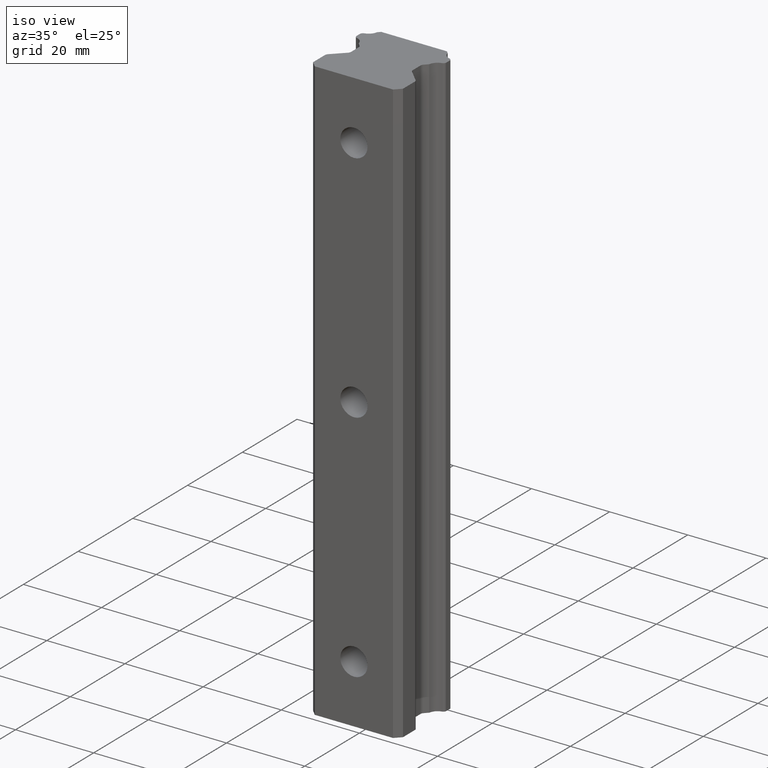
[diagram: clean part render]
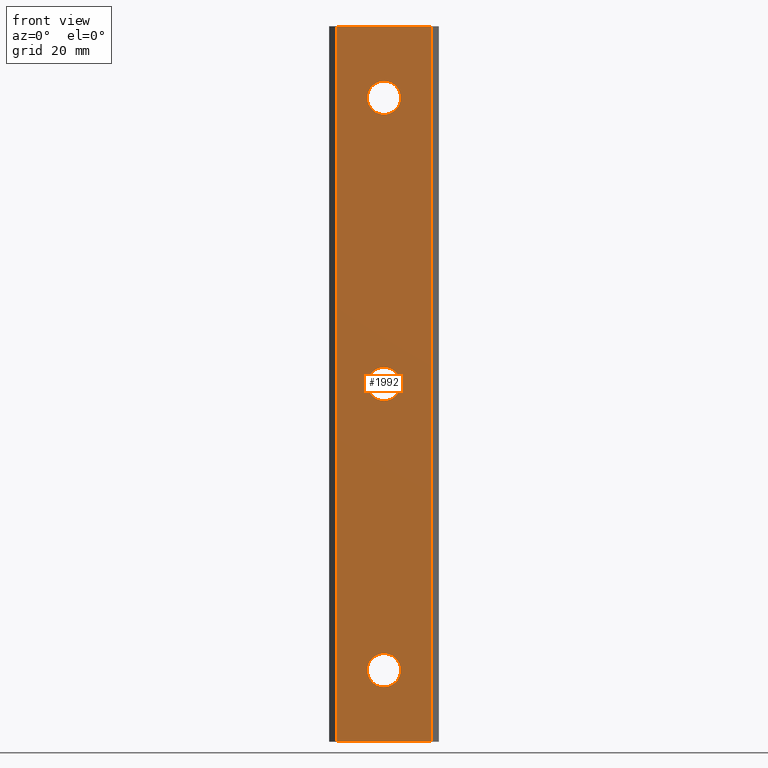
[diagram: tour spotlight — one face highlighted and labeled with its STEP entity id]
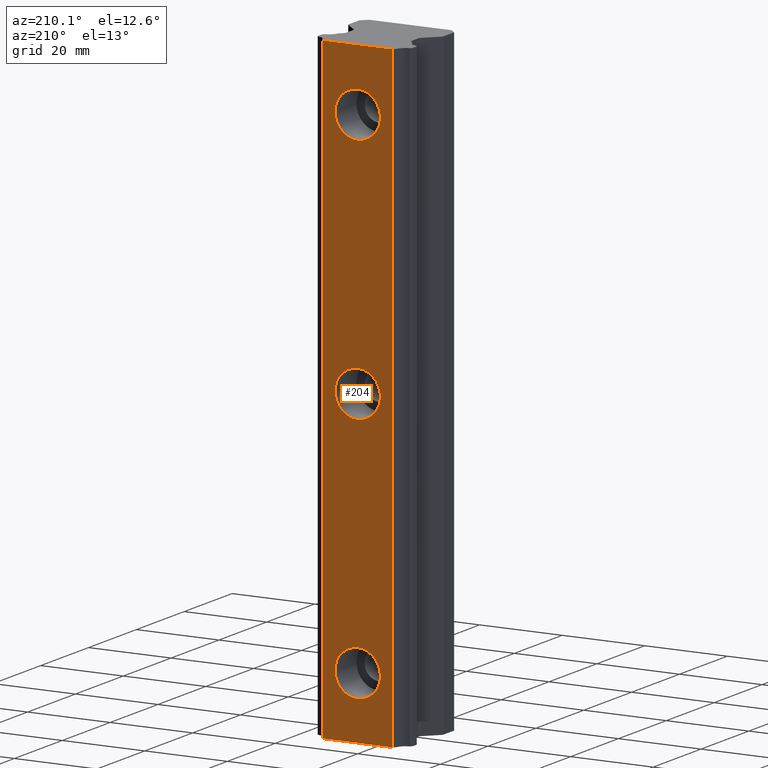
[diagram: tour spotlight — one face highlighted and labeled with its STEP entity id]
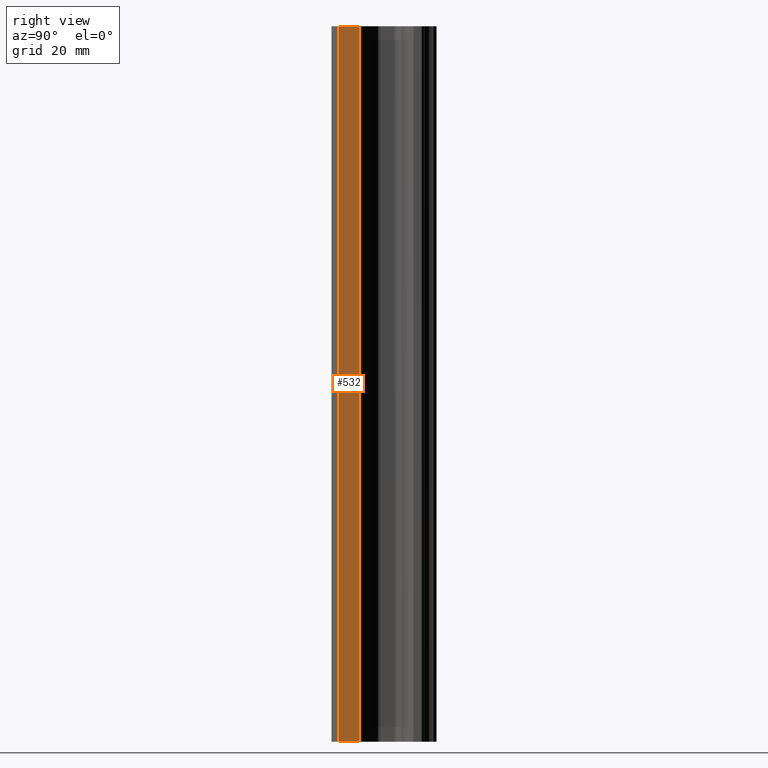
[diagram: tour spotlight — one face highlighted and labeled with its STEP entity id]
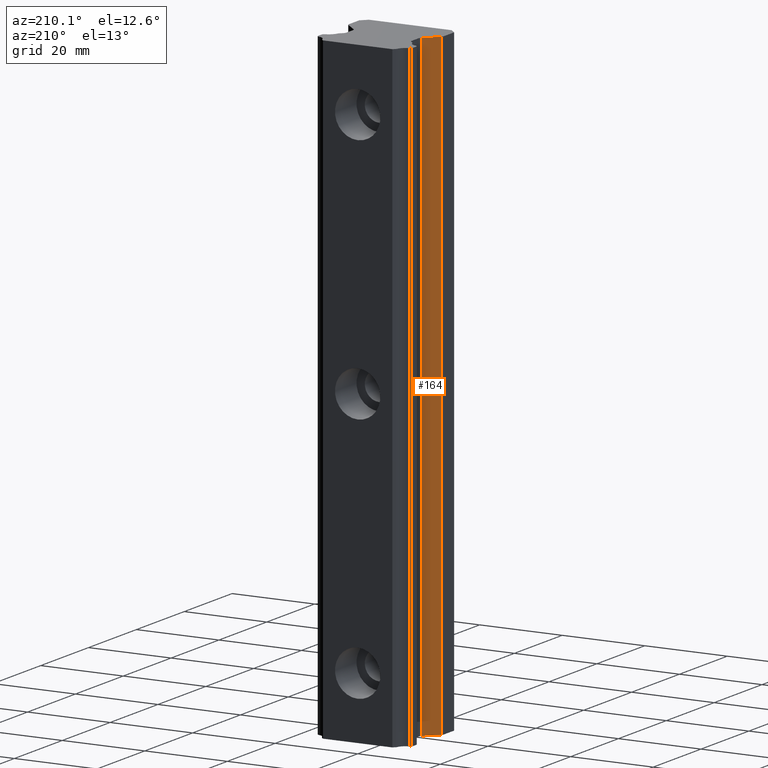
[diagram: tour spotlight — one face highlighted and labeled with its STEP entity id]
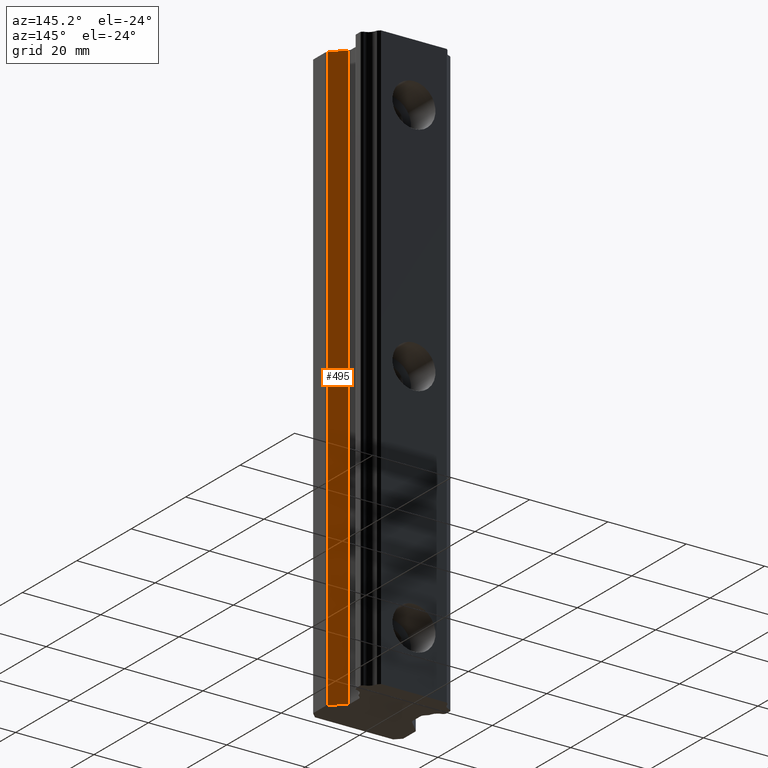
[diagram: tour spotlight — one face highlighted and labeled with its STEP entity id]
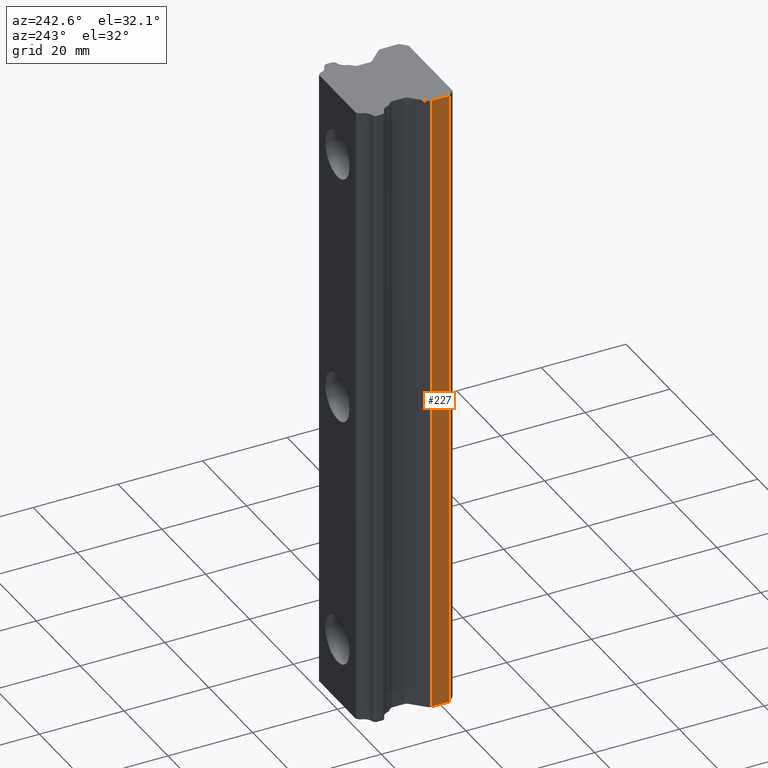
[diagram: tour spotlight — one face highlighted and labeled with its STEP entity id]
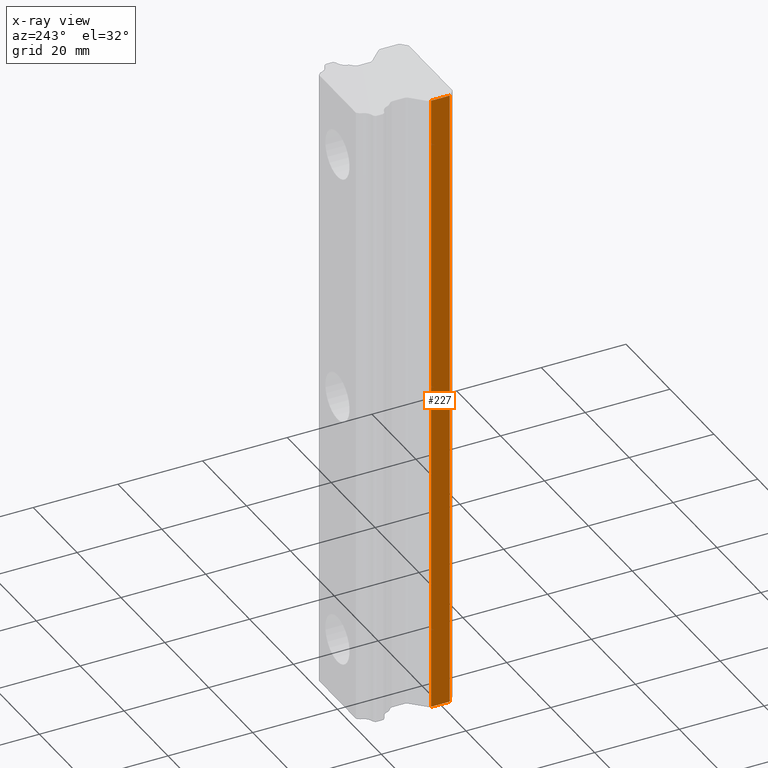
[diagram: x-ray of the same camera — body ghosted, this tour face saturated]
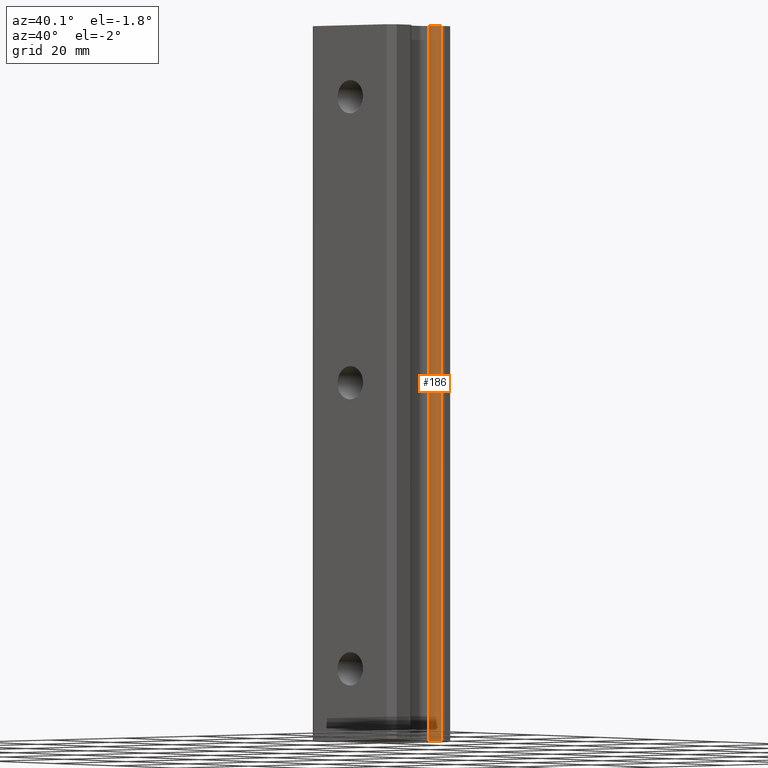
[diagram: tour spotlight — one face highlighted and labeled with its STEP entity id]
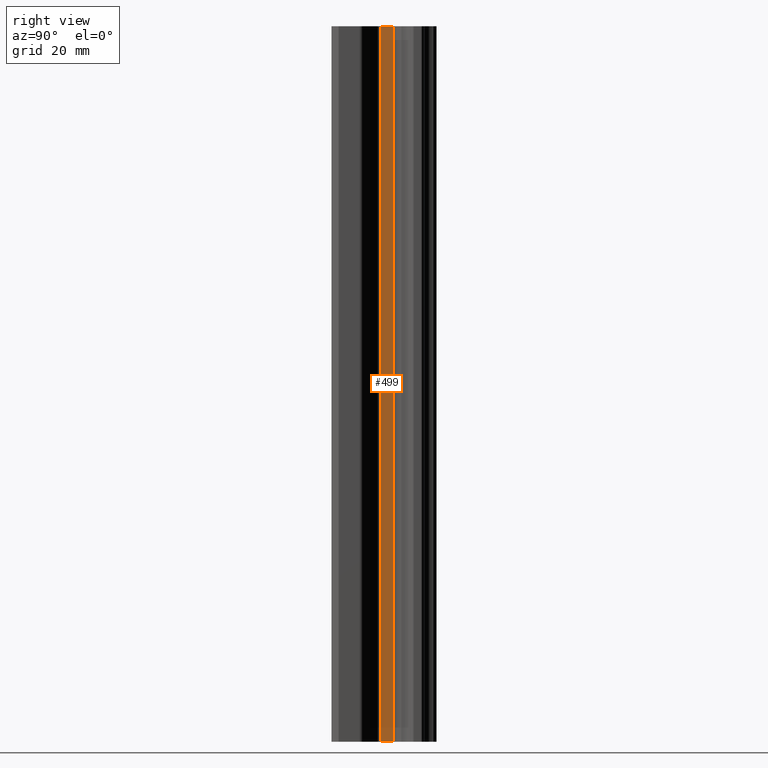
[diagram: tour spotlight — one face highlighted and labeled with its STEP entity id]
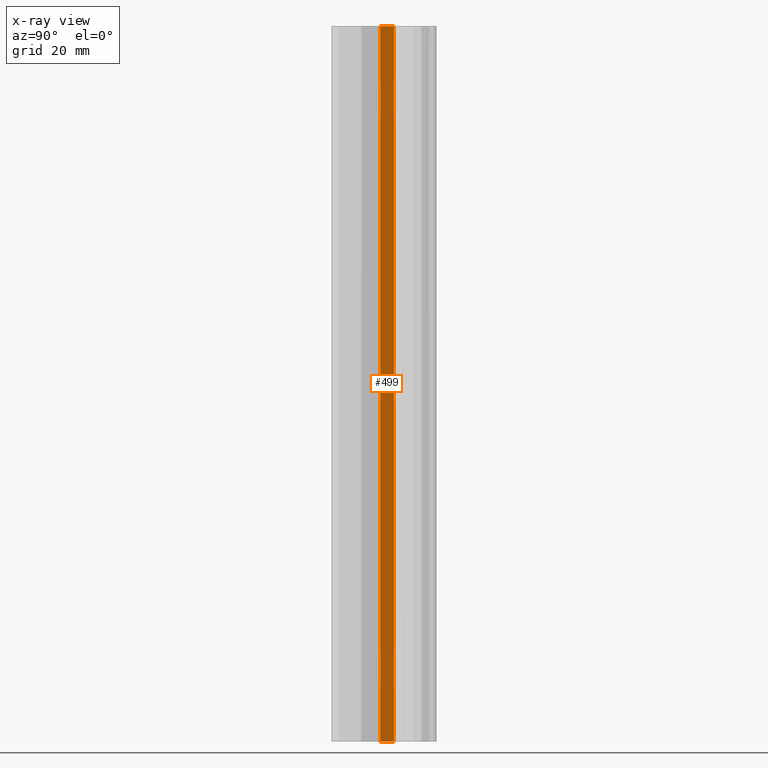
[diagram: x-ray of the same camera — body ghosted, this tour face saturated]
A machine part: a face-by-face anatomy tour. The part has 59 B-rep faces; the first image is the clean iso view, then the 8 largest visible faces are spotlighted one at a time (largest first), each with its STEP entity span.

Face 1 — front view, entity #1992. In plain terms, the highlighted planar face has unit normal (0, -1, 0).
Definition (entity closure, byte-faithful):
#5 = VERTEX_POINT ( 'NONE', #559 ) ;
#42 = VERTEX_POINT ( 'NONE', #615 ) ;
#55 = EDGE_CURVE ( 'NONE', #5, #42, #614, .T. ) ;
#96 = VERTEX_POINT ( 'NONE', #642 ) ;
#113 = EDGE_CURVE ( 'NONE', #96, #119, #691, .T. ) ;
#119 = VERTEX_POINT ( 'NONE', #681 ) ;
#131 = EDGE_CURVE ( 'NONE', #42, #96, #666, .T. ) ;
#179 = VERTEX_POINT ( 'NONE', #779 ) ;
#180 = VERTEX_POINT ( 'NONE', #778 ) ;
#183 = EDGE_CURVE ( 'NONE', #180, #179, #773, .T. ) ;
#207 = VERTEX_POINT ( 'NONE', #846 ) ;
#211 = VERTEX_POINT ( 'NONE', #844 ) ;
#218 = EDGE_CURVE ( 'NONE', #211, #207, #839, .T. ) ;
#236 = VERTEX_POINT ( 'NONE', #867 ) ;
#237 = VERTEX_POINT ( 'NONE', #866 ) ;
#238 = EDGE_CURVE ( 'NONE', #236, #237, #865, .T. ) ;
#559 = CARTESIAN_POINT ( 'NONE',  ( 10.00000000000000000, -22.00000000000000000, -75.00000000000000000 ) ) ;
#611 = DIRECTION ( 'NONE',  ( 0.0000000000000000000, 0.0000000000000000000, 1.000000000000000000 ) ) ;
#612 = VECTOR ( 'NONE', #611, 1000.000000000000000 ) ;
#613 = CARTESIAN_POINT ( 'NONE',  ( 10.00000000000000000, -22.00000000000000000, -75.00000000000000000 ) ) ;
#614 = LINE ( 'NONE', #613, #612 ) ;
#615 = CARTESIAN_POINT ( 'NONE',  ( 9.999999999999998200, -22.00000000000000000, 75.00000000000001400 ) ) ;
#642 = CARTESIAN_POINT ( 'NONE',  ( -10.00000000000000000, -22.00000000000000000, 75.00000000000005700 ) ) ;
#663 = DIRECTION ( 'NONE',  ( -1.000000000000000000, 0.0000000000000000000, 0.0000000000000000000 ) ) ;
#664 = VECTOR ( 'NONE', #663, 1000.000000000000000 ) ;
#665 = CARTESIAN_POINT ( 'NONE',  ( -10.00000000000000000, -22.00000000000000000, 75.00000000000000000 ) ) ;
#666 = LINE ( 'NONE', #665, #664 ) ;
#681 = CARTESIAN_POINT ( 'NONE',  ( -10.00000000000000000, -22.00000000000000000, -75.00000000000000000 ) ) ;
#688 = DIRECTION ( 'NONE',  ( 0.0000000000000000000, 0.0000000000000000000, -1.000000000000000000 ) ) ;
#689 = VECTOR ( 'NONE', #688, 1000.000000000000000 ) ;
#690 = CARTESIAN_POINT ( 'NONE',  ( -10.00000000000000000, -22.00000000000000000, -75.00000000000000000 ) ) ;
#691 = LINE ( 'NONE', #690, #689 ) ;
#769 = DIRECTION ( 'NONE',  ( 0.0000000000000000000, 0.0000000000000000000, 1.000000000000000000 ) ) ;
#770 = DIRECTION ( 'NONE',  ( 0.0000000000000000000, 1.000000000000000000, 0.0000000000000000000 ) ) ;
#771 = CARTESIAN_POINT ( 'NONE',  ( 0.0000000000000000000, -22.00000000000000000, 0.0000000000000000000 ) ) ;
#772 = AXIS2_PLACEMENT_3D ( 'NONE', #771, #770, #769 ) ;
#773 = CIRCLE ( 'NONE', #772, 3.500000000000000000 ) ;
#778 = CARTESIAN_POINT ( 'NONE',  ( 4.286263797015736600E-016, -22.00000000000000000, -3.500000000000000000 ) ) ;
#779 = CARTESIAN_POINT ( 'NONE',  ( 0.0000000000000000000, -22.00000000000000000, 3.500000000000000000 ) ) ;
#835 = DIRECTION ( 'NONE',  ( 0.0000000000000000000, 0.0000000000000000000, 1.000000000000000000 ) ) ;
#836 = DIRECTION ( 'NONE',  ( 0.0000000000000000000, 1.000000000000000000, 0.0000000000000000000 ) ) ;
#837 = CARTESIAN_POINT ( 'NONE',  ( 0.0000000000000000000, -22.00000000000000000, -60.00000000000000000 ) ) ;
#838 = AXIS2_PLACEMENT_3D ( 'NONE', #837, #836, #835 ) ;
#839 = CIRCLE ( 'NONE', #838, 3.500000000000003100 ) ;
#844 = CARTESIAN_POINT ( 'NONE',  ( 4.286263797015732700E-016, -22.00000000000000000, -63.50000000000000000 ) ) ;
#846 = CARTESIAN_POINT ( 'NONE',  ( 0.0000000000000000000, -22.00000000000000000, -56.49999999999999300 ) ) ;
#861 = DIRECTION ( 'NONE',  ( 0.0000000000000000000, 0.0000000000000000000, 1.000000000000000000 ) ) ;
#862 = DIRECTION ( 'NONE',  ( 0.0000000000000000000, 1.000000000000000000, 0.0000000000000000000 ) ) ;
#863 = CARTESIAN_POINT ( 'NONE',  ( 0.0000000000000000000, -22.00000000000000000, 60.00000000000000000 ) ) ;
#864 = AXIS2_PLACEMENT_3D ( 'NONE', #863, #862, #861 ) ;
#865 = CIRCLE ( 'NONE', #864, 3.500000000000003100 ) ;
#866 = CARTESIAN_POINT ( 'NONE',  ( 0.0000000000000000000, -22.00000000000000000, 63.50000000000000000 ) ) ;
#867 = CARTESIAN_POINT ( 'NONE',  ( 4.286263797015732700E-016, -22.00000000000000000, 56.49999999999999300 ) ) ;
#1382 = ORIENTED_EDGE ( 'NONE', *, *, #1944, .T. ) ;
#1769 = CIRCLE ( 'NONE', #1829, 3.500000000000000000 ) ;
#1772 = DIRECTION ( 'NONE',  ( 1.000000000000000000, 0.0000000000000000000, 0.0000000000000000000 ) ) ;
#1773 = VECTOR ( 'NONE', #1772, 1000.000000000000000 ) ;
#1774 = CARTESIAN_POINT ( 'NONE',  ( -10.00000000000000000, -22.00000000000000000, -75.00000000000000000 ) ) ;
#1775 = LINE ( 'NONE', #1774, #1773 ) ;
#1799 = PLANE ( 'NONE',  #1846 ) ;
#1800 = FACE_OUTER_BOUND ( 'NONE', #1978, .T. ) ;
#1801 = FACE_BOUND ( 'NONE', #1985, .T. ) ;
#1802 = FACE_BOUND ( 'NONE', #1988, .T. ) ;
#1803 = FACE_BOUND ( 'NONE', #1991, .T. ) ;
#1804 = DIRECTION ( 'NONE',  ( 0.0000000000000000000, 0.0000000000000000000, 1.000000000000000000 ) ) ;
#1805 = DIRECTION ( 'NONE',  ( 0.0000000000000000000, 1.000000000000000000, 0.0000000000000000000 ) ) ;
#1806 = CARTESIAN_POINT ( 'NONE',  ( 0.0000000000000000000, -22.00000000000000000, -60.00000000000000000 ) ) ;
#1807 = AXIS2_PLACEMENT_3D ( 'NONE', #1806, #1805, #1804 ) ;
#1808 = CIRCLE ( 'NONE', #1807, 3.500000000000003100 ) ;
#1809 = DIRECTION ( 'NONE',  ( 0.0000000000000000000, 0.0000000000000000000, 1.000000000000000000 ) ) ;
#1810 = DIRECTION ( 'NONE',  ( 0.0000000000000000000, 1.000000000000000000, 0.0000000000000000000 ) ) ;
#1811 = AXIS2_PLACEMENT_3D ( 'NONE', #1817, #1810, #1809 ) ;
#1812 = CIRCLE ( 'NONE', #1811, 3.500000000000003100 ) ;
#1817 = CARTESIAN_POINT ( 'NONE',  ( 0.0000000000000000000, -22.00000000000000000, 60.00000000000000000 ) ) ;
#1826 = DIRECTION ( 'NONE',  ( 0.0000000000000000000, 0.0000000000000000000, 1.000000000000000000 ) ) ;
#1827 = DIRECTION ( 'NONE',  ( 0.0000000000000000000, 1.000000000000000000, 0.0000000000000000000 ) ) ;
#1828 = CARTESIAN_POINT ( 'NONE',  ( 0.0000000000000000000, -22.00000000000000000, 0.0000000000000000000 ) ) ;
#1829 = AXIS2_PLACEMENT_3D ( 'NONE', #1828, #1827, #1826 ) ;
#1843 = DIRECTION ( 'NONE',  ( 0.0000000000000000000, 0.0000000000000000000, -1.000000000000000000 ) ) ;
#1844 = DIRECTION ( 'NONE',  ( 0.0000000000000000000, -1.000000000000000000, 0.0000000000000000000 ) ) ;
#1845 = CARTESIAN_POINT ( 'NONE',  ( -10.00000000000000000, -22.00000000000000000, -75.00000000000000000 ) ) ;
#1846 = AXIS2_PLACEMENT_3D ( 'NONE', #1845, #1844, #1843 ) ;
#1944 = EDGE_CURVE ( 'NONE', #119, #5, #1775, .T. ) ;
#1962 = EDGE_CURVE ( 'NONE', #179, #180, #1769, .T. ) ;
#1975 = EDGE_CURVE ( 'NONE', #237, #236, #1812, .T. ) ;
#1978 = EDGE_LOOP ( 'NONE', ( #1980, #1382, #1996, #1994 ) ) ;
#1980 = ORIENTED_EDGE ( 'NONE', *, *, #113, .T. ) ;
#1982 = EDGE_CURVE ( 'NONE', #207, #211, #1808, .T. ) ;
#1983 = ORIENTED_EDGE ( 'NONE', *, *, #183, .T. ) ;
#1984 = ORIENTED_EDGE ( 'NONE', *, *, #1962, .T. ) ;
#1985 = EDGE_LOOP ( 'NONE', ( #1984, #1983 ) ) ;
#1986 = ORIENTED_EDGE ( 'NONE', *, *, #218, .T. ) ;
#1987 = ORIENTED_EDGE ( 'NONE', *, *, #1982, .T. ) ;
#1988 = EDGE_LOOP ( 'NONE', ( #1987, #1986 ) ) ;
#1989 = ORIENTED_EDGE ( 'NONE', *, *, #238, .T. ) ;
#1990 = ORIENTED_EDGE ( 'NONE', *, *, #1975, .T. ) ;
#1991 = EDGE_LOOP ( 'NONE', ( #1990, #1989 ) ) ;
#1992 = ADVANCED_FACE ( 'NONE', ( #1803, #1802, #1801, #1800 ), #1799, .T. ) ;
#1994 = ORIENTED_EDGE ( 'NONE', *, *, #131, .T. ) ;
#1996 = ORIENTED_EDGE ( 'NONE', *, *, #55, .T. ) ;

Face 2 — auxiliary view, entity #204. In plain terms, the highlighted planar face has unit normal (0, 1, 0).
Definition (entity closure, byte-faithful):
#11 = EDGE_LOOP ( 'NONE', ( #65, #61 ) ) ;
#33 = ORIENTED_EDGE ( 'NONE', *, *, #380, .T. ) ;
#45 = ORIENTED_EDGE ( 'NONE', *, *, #431, .T. ) ;
#60 = ORIENTED_EDGE ( 'NONE', *, *, #62, .F. ) ;
#61 = ORIENTED_EDGE ( 'NONE', *, *, #154, .T. ) ;
#62 = EDGE_CURVE ( 'NONE', #381, #432, #606, .T. ) ;
#63 = EDGE_CURVE ( 'NONE', #403, #329, #602, .T. ) ;
#64 = ORIENTED_EDGE ( 'NONE', *, *, #63, .T. ) ;
#65 = ORIENTED_EDGE ( 'NONE', *, *, #1324, .T. ) ;
#66 = EDGE_LOOP ( 'NONE', ( #33, #64, #45, #60 ) ) ;
#154 = EDGE_CURVE ( 'NONE', #1415, #1317, #754, .T. ) ;
#201 = EDGE_LOOP ( 'NONE', ( #214, #1372 ) ) ;
#203 = ORIENTED_EDGE ( 'NONE', *, *, #497, .T. ) ;
#204 = ADVANCED_FACE ( 'NONE', ( #795, #794, #793, #792 ), #791, .T. ) ;
#212 = ORIENTED_EDGE ( 'NONE', *, *, #1341, .T. ) ;
#214 = ORIENTED_EDGE ( 'NONE', *, *, #1354, .T. ) ;
#215 = EDGE_LOOP ( 'NONE', ( #212, #203 ) ) ;
#329 = VERTEX_POINT ( 'NONE', #1077 ) ;
#380 = EDGE_CURVE ( 'NONE', #381, #403, #1172, .T. ) ;
#381 = VERTEX_POINT ( 'NONE', #1168 ) ;
#403 = VERTEX_POINT ( 'NONE', #1194 ) ;
#431 = EDGE_CURVE ( 'NONE', #329, #432, #1208, .T. ) ;
#432 = VERTEX_POINT ( 'NONE', #1266 ) ;
#494 = EDGE_CURVE ( 'NONE', #1306, #1347, #1461, .T. ) ;
#497 = EDGE_CURVE ( 'NONE', #1352, #1339, #1450, .T. ) ;
#599 = DIRECTION ( 'NONE',  ( -1.000000000000000000, 0.0000000000000000000, 0.0000000000000000000 ) ) ;
#600 = VECTOR ( 'NONE', #599, 1000.000000000000000 ) ;
#601 = CARTESIAN_POINT ( 'NONE',  ( 0.0000000000000000000, 0.0000000000000000000, -75.00000000000000000 ) ) ;
#602 = LINE ( 'NONE', #601, #600 ) ;
#603 = DIRECTION ( 'NONE',  ( -1.000000000000000000, 0.0000000000000000000, 0.0000000000000000000 ) ) ;
#604 = VECTOR ( 'NONE', #603, 1000.000000000000000 ) ;
#605 = CARTESIAN_POINT ( 'NONE',  ( 0.0000000000000000000, 0.0000000000000000000, 75.00000000000000000 ) ) ;
#606 = LINE ( 'NONE', #605, #604 ) ;
#750 = DIRECTION ( 'NONE',  ( 0.0000000000000000000, 0.0000000000000000000, 1.000000000000000000 ) ) ;
#751 = DIRECTION ( 'NONE',  ( 0.0000000000000000000, -1.000000000000000000, 0.0000000000000000000 ) ) ;
#752 = CARTESIAN_POINT ( 'NONE',  ( 0.0000000000000000000, 0.0000000000000000000, 60.00000000000000000 ) ) ;
#753 = AXIS2_PLACEMENT_3D ( 'NONE', #752, #751, #750 ) ;
#754 = CIRCLE ( 'NONE', #753, 5.500000000000005300 ) ;
#791 = PLANE ( 'NONE',  #854 ) ;
#792 = FACE_OUTER_BOUND ( 'NONE', #66, .T. ) ;
#793 = FACE_BOUND ( 'NONE', #11, .T. ) ;
#794 = FACE_BOUND ( 'NONE', #201, .T. ) ;
#795 = FACE_BOUND ( 'NONE', #215, .T. ) ;
#851 = DIRECTION ( 'NONE',  ( 0.0000000000000000000, 0.0000000000000000000, 1.000000000000000000 ) ) ;
#852 = DIRECTION ( 'NONE',  ( 0.0000000000000000000, 1.000000000000000000, 0.0000000000000000000 ) ) ;
#853 = CARTESIAN_POINT ( 'NONE',  ( 8.408698000000999400, 0.0000000000000000000, -75.00000000000000000 ) ) ;
#854 = AXIS2_PLACEMENT_3D ( 'NONE', #853, #852, #851 ) ;
#1077 = CARTESIAN_POINT ( 'NONE',  ( -8.408698000001001200, -4.878909776184770000E-016, -75.00000000000000000 ) ) ;
#1168 = CARTESIAN_POINT ( 'NONE',  ( 8.408698000000974600, -2.504507018441515200E-014, 75.00000000000004300 ) ) ;
#1169 = DIRECTION ( 'NONE',  ( 0.0000000000000000000, 0.0000000000000000000, -1.000000000000000000 ) ) ;
#1170 = VECTOR ( 'NONE', #1169, 1000.000000000000000 ) ;
#1171 = CARTESIAN_POINT ( 'NONE',  ( 8.408698000000999400, 0.0000000000000000000, -75.00000000000000000 ) ) ;
#1172 = LINE ( 'NONE', #1171, #1170 ) ;
#1194 = CARTESIAN_POINT ( 'NONE',  ( 8.408698000000949700, -5.009014036883030500E-014, -75.00000000000000000 ) ) ;
#1205 = DIRECTION ( 'NONE',  ( 0.0000000000000000000, 0.0000000000000000000, 1.000000000000000000 ) ) ;
#1206 = VECTOR ( 'NONE', #1205, 1000.000000000000000 ) ;
#1207 = CARTESIAN_POINT ( 'NONE',  ( -8.408698000000999400, 0.0000000000000000000, -75.00000000000000000 ) ) ;
#1208 = LINE ( 'NONE', #1207, #1206 ) ;
#1266 = CARTESIAN_POINT ( 'NONE',  ( -8.408698000001001200, -3.252606517456513300E-016, 75.00000000000002800 ) ) ;
#1306 = VERTEX_POINT ( 'NONE', #1608 ) ;
#1317 = VERTEX_POINT ( 'NONE', #1603 ) ;
#1324 = EDGE_CURVE ( 'NONE', #1317, #1415, #1597, .T. ) ;
#1339 = VERTEX_POINT ( 'NONE', #1666 ) ;
#1341 = EDGE_CURVE ( 'NONE', #1339, #1352, #1665, .T. ) ;
#1347 = VERTEX_POINT ( 'NONE', #1647 ) ;
#1352 = VERTEX_POINT ( 'NONE', #1642 ) ;
#1354 = EDGE_CURVE ( 'NONE', #1347, #1306, #1699, .T. ) ;
#1372 = ORIENTED_EDGE ( 'NONE', *, *, #494, .T. ) ;
#1415 = VERTEX_POINT ( 'NONE', #1776 ) ;
#1447 = DIRECTION ( 'NONE',  ( 0.0000000000000000000, -1.000000000000000000, 0.0000000000000000000 ) ) ;
#1448 = CARTESIAN_POINT ( 'NONE',  ( 0.0000000000000000000, 0.0000000000000000000, -60.00000000000000000 ) ) ;
#1449 = AXIS2_PLACEMENT_3D ( 'NONE', #1448, #1447, #1510 ) ;
#1450 = CIRCLE ( 'NONE', #1449, 5.499999999999998200 ) ;
#1457 = DIRECTION ( 'NONE',  ( 0.0000000000000000000, 0.0000000000000000000, 1.000000000000000000 ) ) ;
#1458 = DIRECTION ( 'NONE',  ( 0.0000000000000000000, -1.000000000000000000, 0.0000000000000000000 ) ) ;
#1459 = CARTESIAN_POINT ( 'NONE',  ( 0.0000000000000000000, 0.0000000000000000000, 0.0000000000000000000 ) ) ;
#1460 = AXIS2_PLACEMENT_3D ( 'NONE', #1459, #1458, #1457 ) ;
#1461 = CIRCLE ( 'NONE', #1460, 5.500000000000000000 ) ;
#1510 = DIRECTION ( 'NONE',  ( 0.0000000000000000000, 0.0000000000000000000, 1.000000000000000000 ) ) ;
#1593 = DIRECTION ( 'NONE',  ( 0.0000000000000000000, 0.0000000000000000000, 1.000000000000000000 ) ) ;
#1594 = DIRECTION ( 'NONE',  ( 0.0000000000000000000, -1.000000000000000000, 0.0000000000000000000 ) ) ;
#1595 = CARTESIAN_POINT ( 'NONE',  ( 0.0000000000000000000, 0.0000000000000000000, 60.00000000000000000 ) ) ;
#1596 = AXIS2_PLACEMENT_3D ( 'NONE', #1595, #1594, #1593 ) ;
#1597 = CIRCLE ( 'NONE', #1596, 5.500000000000005300 ) ;
#1603 = CARTESIAN_POINT ( 'NONE',  ( 0.0000000000000000000, 0.0000000000000000000, 65.50000000000000000 ) ) ;
#1608 = CARTESIAN_POINT ( 'NONE',  ( 6.735557395310442000E-016, 0.0000000000000000000, -5.500000000000000000 ) ) ;
#1642 = CARTESIAN_POINT ( 'NONE',  ( 6.735557395310435100E-016, 0.0000000000000000000, -65.50000000000000000 ) ) ;
#1647 = CARTESIAN_POINT ( 'NONE',  ( 0.0000000000000000000, 0.0000000000000000000, 5.500000000000000000 ) ) ;
#1661 = DIRECTION ( 'NONE',  ( 0.0000000000000000000, 0.0000000000000000000, 1.000000000000000000 ) ) ;
#1662 = DIRECTION ( 'NONE',  ( 0.0000000000000000000, -1.000000000000000000, 0.0000000000000000000 ) ) ;
#1663 = CARTESIAN_POINT ( 'NONE',  ( 0.0000000000000000000, 0.0000000000000000000, -60.00000000000000000 ) ) ;
#1664 = AXIS2_PLACEMENT_3D ( 'NONE', #1663, #1662, #1661 ) ;
#1665 = CIRCLE ( 'NONE', #1664, 5.499999999999998200 ) ;
#1666 = CARTESIAN_POINT ( 'NONE',  ( 0.0000000000000000000, 0.0000000000000000000, -54.50000000000000000 ) ) ;
#1695 = DIRECTION ( 'NONE',  ( 0.0000000000000000000, 0.0000000000000000000, 1.000000000000000000 ) ) ;
#1696 = DIRECTION ( 'NONE',  ( 0.0000000000000000000, -1.000000000000000000, 0.0000000000000000000 ) ) ;
#1697 = CARTESIAN_POINT ( 'NONE',  ( 0.0000000000000000000, 0.0000000000000000000, 0.0000000000000000000 ) ) ;
#1698 = AXIS2_PLACEMENT_3D ( 'NONE', #1697, #1696, #1695 ) ;
#1699 = CIRCLE ( 'NONE', #1698, 5.500000000000000000 ) ;
#1776 = CARTESIAN_POINT ( 'NONE',  ( 6.735557395310444000E-016, 0.0000000000000000000, 54.50000000000000000 ) ) ;

Face 3 — right view, entity #532. In plain terms, the highlighted planar face has unit normal (1, 0, 0).
Definition (entity closure, byte-faithful):
#241 = EDGE_CURVE ( 'NONE', #253, #481, #860, .T. ) ;
#244 = ORIENTED_EDGE ( 'NONE', *, *, #241, .F. ) ;
#246 = ORIENTED_EDGE ( 'NONE', *, *, #479, .T. ) ;
#248 = EDGE_CURVE ( 'NONE', #252, #480, #910, .T. ) ;
#249 = ORIENTED_EDGE ( 'NONE', *, *, #248, .T. ) ;
#251 = EDGE_CURVE ( 'NONE', #252, #253, #903, .T. ) ;
#252 = VERTEX_POINT ( 'NONE', #899 ) ;
#253 = VERTEX_POINT ( 'NONE', #898 ) ;
#256 = ORIENTED_EDGE ( 'NONE', *, *, #251, .F. ) ;
#476 = EDGE_LOOP ( 'NONE', ( #256, #249, #246, #244 ) ) ;
#479 = EDGE_CURVE ( 'NONE', #480, #481, #1424, .T. ) ;
#480 = VERTEX_POINT ( 'NONE', #1420 ) ;
#481 = VERTEX_POINT ( 'NONE', #1419 ) ;
#532 = ADVANCED_FACE ( 'NONE', ( #1564 ), #1563, .T. ) ;
#857 = DIRECTION ( 'NONE',  ( 0.0000000000000000000, 1.000000000000000000, 0.0000000000000000000 ) ) ;
#858 = VECTOR ( 'NONE', #857, 1000.000000000000000 ) ;
#859 = CARTESIAN_POINT ( 'NONE',  ( 11.50000000000000000, 0.0000000000000000000, 75.00000000000000000 ) ) ;
#860 = LINE ( 'NONE', #859, #858 ) ;
#898 = CARTESIAN_POINT ( 'NONE',  ( 11.50000000000000000, -20.49999999999999600, 75.00000000000002800 ) ) ;
#899 = CARTESIAN_POINT ( 'NONE',  ( 11.50000000000000000, -20.49999999999999600, -74.99999999999998600 ) ) ;
#900 = DIRECTION ( 'NONE',  ( 0.0000000000000000000, 0.0000000000000000000, 1.000000000000000000 ) ) ;
#901 = VECTOR ( 'NONE', #900, 1000.000000000000000 ) ;
#902 = CARTESIAN_POINT ( 'NONE',  ( 11.50000000000000000, -20.50000000000000000, -75.00000000000000000 ) ) ;
#903 = LINE ( 'NONE', #902, #901 ) ;
#904 = DIRECTION ( 'NONE',  ( 0.0000000000000000000, 1.000000000000000000, 0.0000000000000000000 ) ) ;
#905 = VECTOR ( 'NONE', #904, 1000.000000000000000 ) ;
#906 = CARTESIAN_POINT ( 'NONE',  ( 11.50000000000000000, 0.0000000000000000000, -75.00000000000000000 ) ) ;
#910 = LINE ( 'NONE', #906, #905 ) ;
#1419 = CARTESIAN_POINT ( 'NONE',  ( 11.50000000000000000, -16.17414271559000100, 75.00000000000000000 ) ) ;
#1420 = CARTESIAN_POINT ( 'NONE',  ( 11.50000000000000000, -16.17414271559000100, -75.00000000000000000 ) ) ;
#1421 = DIRECTION ( 'NONE',  ( 0.0000000000000000000, 0.0000000000000000000, 1.000000000000000000 ) ) ;
#1422 = VECTOR ( 'NONE', #1421, 1000.000000000000000 ) ;
#1423 = CARTESIAN_POINT ( 'NONE',  ( 11.50000000000000000, -16.17414271559000100, -75.00000000000000000 ) ) ;
#1424 = LINE ( 'NONE', #1423, #1422 ) ;
#1559 = DIRECTION ( 'NONE',  ( 0.0000000000000000000, 0.0000000000000000000, -1.000000000000000000 ) ) ;
#1560 = DIRECTION ( 'NONE',  ( 1.000000000000000000, 0.0000000000000000000, 0.0000000000000000000 ) ) ;
#1561 = CARTESIAN_POINT ( 'NONE',  ( 11.50000000000000000, -20.50000000000000000, -75.00000000000000000 ) ) ;
#1562 = AXIS2_PLACEMENT_3D ( 'NONE', #1561, #1560, #1559 ) ;
#1563 = PLANE ( 'NONE',  #1562 ) ;
#1564 = FACE_OUTER_BOUND ( 'NONE', #476, .T. ) ;

Face 4 — auxiliary view, entity #164. In plain terms, the highlighted planar face has unit normal (-0.7071, 0.7071, 0).
Definition (entity closure, byte-faithful):
#164 = ADVANCED_FACE ( 'NONE', ( #743 ), #742, .T. ) ;
#165 = EDGE_LOOP ( 'NONE', ( #230, #232, #233, #234 ) ) ;
#228 = EDGE_CURVE ( 'NONE', #453, #485, #883, .T. ) ;
#230 = ORIENTED_EDGE ( 'NONE', *, *, #524, .T. ) ;
#231 = EDGE_CURVE ( 'NONE', #413, #484, #871, .T. ) ;
#232 = ORIENTED_EDGE ( 'NONE', *, *, #231, .T. ) ;
#233 = ORIENTED_EDGE ( 'NONE', *, *, #528, .T. ) ;
#234 = ORIENTED_EDGE ( 'NONE', *, *, #228, .F. ) ;
#413 = VERTEX_POINT ( 'NONE', #1237 ) ;
#453 = VERTEX_POINT ( 'NONE', #1289 ) ;
#484 = VERTEX_POINT ( 'NONE', #1476 ) ;
#485 = VERTEX_POINT ( 'NONE', #1475 ) ;
#524 = EDGE_CURVE ( 'NONE', #453, #413, #1515, .T. ) ;
#528 = EDGE_CURVE ( 'NONE', #484, #485, #1577, .T. ) ;
#735 = DIRECTION ( 'NONE',  ( -0.7071067811865975300, -0.7071067811864976100, 0.0000000000000000000 ) ) ;
#736 = DIRECTION ( 'NONE',  ( -0.7071067811864976100, 0.7071067811865975300, 0.0000000000000000000 ) ) ;
#737 = CARTESIAN_POINT ( 'NONE',  ( -8.192893218813001300, -12.45282237203000100, -75.00000000000000000 ) ) ;
#739 = AXIS2_PLACEMENT_3D ( 'NONE', #737, #736, #735 ) ;
#742 = PLANE ( 'NONE',  #739 ) ;
#743 = FACE_OUTER_BOUND ( 'NONE', #165, .T. ) ;
#868 = DIRECTION ( 'NONE',  ( -0.7071067811873685800, -0.7071067811857264500, 0.0000000000000000000 ) ) ;
#869 = VECTOR ( 'NONE', #868, 1000.000000000000200 ) ;
#870 = CARTESIAN_POINT ( 'NONE',  ( -8.192893218813001300, -12.45282237203000100, -75.00000000000000000 ) ) ;
#871 = LINE ( 'NONE', #870, #869 ) ;
#876 = DIRECTION ( 'NONE',  ( -0.7071067811873685800, -0.7071067811857264500, 0.0000000000000000000 ) ) ;
#877 = VECTOR ( 'NONE', #876, 1000.000000000000200 ) ;
#878 = CARTESIAN_POINT ( 'NONE',  ( -8.192893218813001300, -12.45282237203000100, 75.00000000000000000 ) ) ;
#883 = LINE ( 'NONE', #878, #877 ) ;
#1237 = CARTESIAN_POINT ( 'NONE',  ( -8.192893218812660200, -12.45282237202966200, -75.00000000000000000 ) ) ;
#1289 = CARTESIAN_POINT ( 'NONE',  ( -8.192893218812660200, -12.45282237202966200, 74.99999999999998600 ) ) ;
#1475 = CARTESIAN_POINT ( 'NONE',  ( -11.20710678118794800, -15.46703593440123500, 75.00000000000000000 ) ) ;
#1476 = CARTESIAN_POINT ( 'NONE',  ( -11.20710678118794800, -15.46703593440123500, -75.00000000000000000 ) ) ;
#1512 = DIRECTION ( 'NONE',  ( 0.0000000000000000000, 0.0000000000000000000, -1.000000000000000000 ) ) ;
#1513 = VECTOR ( 'NONE', #1512, 1000.000000000000000 ) ;
#1514 = CARTESIAN_POINT ( 'NONE',  ( -8.192893218813001300, -12.45282237203000100, -75.00000000000000000 ) ) ;
#1515 = LINE ( 'NONE', #1514, #1513 ) ;
#1569 = DIRECTION ( 'NONE',  ( 0.0000000000000000000, 0.0000000000000000000, 1.000000000000000000 ) ) ;
#1570 = VECTOR ( 'NONE', #1569, 1000.000000000000000 ) ;
#1571 = CARTESIAN_POINT ( 'NONE',  ( -11.20710678118671300, -15.46703593440328800, -75.00000000000000000 ) ) ;
#1577 = LINE ( 'NONE', #1571, #1570 ) ;

Face 5 — auxiliary view, entity #495. In plain terms, the highlighted planar face has unit normal (0.7071, 0.7071, 0).
Definition (entity closure, byte-faithful):
#146 = EDGE_CURVE ( 'NONE', #472, #297, #705, .T. ) ;
#152 = EDGE_CURVE ( 'NONE', #469, #301, #758, .T. ) ;
#153 = ORIENTED_EDGE ( 'NONE', *, *, #152, .T. ) ;
#297 = VERTEX_POINT ( 'NONE', #1009 ) ;
#300 = EDGE_CURVE ( 'NONE', #301, #297, #1007, .T. ) ;
#301 = VERTEX_POINT ( 'NONE', #1003 ) ;
#469 = VERTEX_POINT ( 'NONE', #1446 ) ;
#471 = EDGE_CURVE ( 'NONE', #472, #469, #1445, .T. ) ;
#472 = VERTEX_POINT ( 'NONE', #1441 ) ;
#495 = ADVANCED_FACE ( 'NONE', ( #1462 ), #1456, .T. ) ;
#496 = ORIENTED_EDGE ( 'NONE', *, *, #471, .T. ) ;
#498 = EDGE_LOOP ( 'NONE', ( #496, #153, #502, #503 ) ) ;
#502 = ORIENTED_EDGE ( 'NONE', *, *, #300, .T. ) ;
#503 = ORIENTED_EDGE ( 'NONE', *, *, #146, .F. ) ;
#702 = DIRECTION ( 'NONE',  ( -0.7071067811872513400, 0.7071067811858436900, 0.0000000000000000000 ) ) ;
#703 = VECTOR ( 'NONE', #702, 1000.000000000000000 ) ;
#704 = CARTESIAN_POINT ( 'NONE',  ( 11.20710678118999900, -15.46703593440000000, 75.00000000000000000 ) ) ;
#705 = LINE ( 'NONE', #704, #703 ) ;
#755 = DIRECTION ( 'NONE',  ( -0.7071067811872513400, 0.7071067811858436900, 0.0000000000000000000 ) ) ;
#756 = VECTOR ( 'NONE', #755, 1000.000000000000000 ) ;
#757 = CARTESIAN_POINT ( 'NONE',  ( 11.20710678118999900, -15.46703593440000000, -75.00000000000000000 ) ) ;
#758 = LINE ( 'NONE', #757, #756 ) ;
#1003 = CARTESIAN_POINT ( 'NONE',  ( 8.192893218815209300, -12.45282237202799500, -75.00000000000000000 ) ) ;
#1004 = DIRECTION ( 'NONE',  ( 0.0000000000000000000, 0.0000000000000000000, 1.000000000000000000 ) ) ;
#1005 = VECTOR ( 'NONE', #1004, 1000.000000000000000 ) ;
#1006 = CARTESIAN_POINT ( 'NONE',  ( 8.192893218817213000, -12.45282237202678700, -75.00000000000000000 ) ) ;
#1007 = LINE ( 'NONE', #1006, #1005 ) ;
#1009 = CARTESIAN_POINT ( 'NONE',  ( 8.192893218815209300, -12.45282237202799500, 75.00000000000000000 ) ) ;
#1441 = CARTESIAN_POINT ( 'NONE',  ( 11.20710678118964900, -15.46703593439964800, 75.00000000000000000 ) ) ;
#1442 = DIRECTION ( 'NONE',  ( 0.0000000000000000000, 0.0000000000000000000, -1.000000000000000000 ) ) ;
#1443 = VECTOR ( 'NONE', #1442, 1000.000000000000000 ) ;
#1444 = CARTESIAN_POINT ( 'NONE',  ( 11.20710678118999900, -15.46703593440000000, -75.00000000000000000 ) ) ;
#1445 = LINE ( 'NONE', #1444, #1443 ) ;
#1446 = CARTESIAN_POINT ( 'NONE',  ( 11.20710678118964900, -15.46703593439964800, -75.00000000000000000 ) ) ;
#1452 = DIRECTION ( 'NONE',  ( -0.7071067811864976100, 0.7071067811865975300, 0.0000000000000000000 ) ) ;
#1453 = DIRECTION ( 'NONE',  ( 0.7071067811865975300, 0.7071067811864976100, 0.0000000000000000000 ) ) ;
#1454 = CARTESIAN_POINT ( 'NONE',  ( 11.20710678118999900, -15.46703593440000000, -75.00000000000000000 ) ) ;
#1455 = AXIS2_PLACEMENT_3D ( 'NONE', #1454, #1453, #1452 ) ;
#1456 = PLANE ( 'NONE',  #1455 ) ;
#1462 = FACE_OUTER_BOUND ( 'NONE', #498, .T. ) ;

Face 6 — auxiliary view, entity #227. An x-ray twin of the same camera follows (body ghosted, this face saturated) — the face is partly hidden behind the body. In plain terms, the highlighted planar face has unit normal (-1, 0, 0).
Definition (entity closure, byte-faithful):
#209 = VERTEX_POINT ( 'NONE', #845 ) ;
#219 = ORIENTED_EDGE ( 'NONE', *, *, #455, .T. ) ;
#223 = ORIENTED_EDGE ( 'NONE', *, *, #224, .T. ) ;
#224 = EDGE_CURVE ( 'NONE', #488, #225, #833, .T. ) ;
#225 = VERTEX_POINT ( 'NONE', #824 ) ;
#226 = EDGE_LOOP ( 'NONE', ( #219, #223, #692, #661 ) ) ;
#227 = ADVANCED_FACE ( 'NONE', ( #885 ), #884, .T. ) ;
#455 = EDGE_CURVE ( 'NONE', #456, #488, #1288, .T. ) ;
#456 = VERTEX_POINT ( 'NONE', #1284 ) ;
#488 = VERTEX_POINT ( 'NONE', #1469 ) ;
#661 = ORIENTED_EDGE ( 'NONE', *, *, #741, .F. ) ;
#692 = ORIENTED_EDGE ( 'NONE', *, *, #738, .F. ) ;
#738 = EDGE_CURVE ( 'NONE', #209, #225, #1558, .T. ) ;
#741 = EDGE_CURVE ( 'NONE', #456, #209, #1554, .T. ) ;
#824 = CARTESIAN_POINT ( 'NONE',  ( -11.50000000000000000, -20.49999999999999600, -74.99999999999998600 ) ) ;
#825 = DIRECTION ( 'NONE',  ( 0.0000000000000000000, -1.000000000000000000, 0.0000000000000000000 ) ) ;
#826 = VECTOR ( 'NONE', #825, 1000.000000000000000 ) ;
#827 = CARTESIAN_POINT ( 'NONE',  ( -11.50000000000000000, 0.0000000000000000000, -75.00000000000000000 ) ) ;
#833 = LINE ( 'NONE', #827, #826 ) ;
#845 = CARTESIAN_POINT ( 'NONE',  ( -11.50000000000000000, -20.49999999999999600, 75.00000000000007100 ) ) ;
#879 = DIRECTION ( 'NONE',  ( 0.0000000000000000000, 0.0000000000000000000, 1.000000000000000000 ) ) ;
#880 = DIRECTION ( 'NONE',  ( -1.000000000000000000, 0.0000000000000000000, 0.0000000000000000000 ) ) ;
#881 = CARTESIAN_POINT ( 'NONE',  ( -11.50000000000000000, -16.17414271559000100, -75.00000000000000000 ) ) ;
#882 = AXIS2_PLACEMENT_3D ( 'NONE', #881, #880, #879 ) ;
#884 = PLANE ( 'NONE',  #882 ) ;
#885 = FACE_OUTER_BOUND ( 'NONE', #226, .T. ) ;
#1284 = CARTESIAN_POINT ( 'NONE',  ( -11.50000000000000000, -16.17414271559000100, 75.00000000000000000 ) ) ;
#1285 = DIRECTION ( 'NONE',  ( 0.0000000000000000000, 0.0000000000000000000, -1.000000000000000000 ) ) ;
#1286 = VECTOR ( 'NONE', #1285, 1000.000000000000000 ) ;
#1287 = CARTESIAN_POINT ( 'NONE',  ( -11.50000000000000000, -16.17414271559000100, -75.00000000000000000 ) ) ;
#1288 = LINE ( 'NONE', #1287, #1286 ) ;
#1469 = CARTESIAN_POINT ( 'NONE',  ( -11.50000000000000000, -16.17414271559000100, -75.00000000000000000 ) ) ;
#1551 = DIRECTION ( 'NONE',  ( 0.0000000000000000000, -1.000000000000000000, 0.0000000000000000000 ) ) ;
#1552 = VECTOR ( 'NONE', #1551, 1000.000000000000000 ) ;
#1553 = CARTESIAN_POINT ( 'NONE',  ( -11.50000000000000000, 0.0000000000000000000, 75.00000000000000000 ) ) ;
#1554 = LINE ( 'NONE', #1553, #1552 ) ;
#1555 = DIRECTION ( 'NONE',  ( 0.0000000000000000000, 0.0000000000000000000, -1.000000000000000000 ) ) ;
#1556 = VECTOR ( 'NONE', #1555, 1000.000000000000000 ) ;
#1557 = CARTESIAN_POINT ( 'NONE',  ( -11.50000000000000000, -20.50000000000000000, -75.00000000000000000 ) ) ;
#1558 = LINE ( 'NONE', #1557, #1556 ) ;

Face 7 — auxiliary view, entity #186. In plain terms, the highlighted cylindrical surface (edge-blend (fillet) strip) has radius 2.43 mm, axis along (0, 0, 1).
Definition (entity closure, byte-faithful):
#184 = EDGE_CURVE ( 'NONE', #369, #439, #768, .T. ) ;
#185 = EDGE_LOOP ( 'NONE', ( #205, #188, #202, #198 ) ) ;
#186 = ADVANCED_FACE ( 'NONE', ( #763 ), #759, .F. ) ;
#188 = ORIENTED_EDGE ( 'NONE', *, *, #420, .F. ) ;
#198 = ORIENTED_EDGE ( 'NONE', *, *, #350, .F. ) ;
#199 = EDGE_CURVE ( 'NONE', #355, #440, #800, .T. ) ;
#202 = ORIENTED_EDGE ( 'NONE', *, *, #199, .T. ) ;
#205 = ORIENTED_EDGE ( 'NONE', *, *, #184, .F. ) ;
#250 = CARTESIAN_POINT ( 'NONE',  ( 11.44706701449000100, -7.742721014494001100, -75.00000000000000000 ) ) ;
#350 = EDGE_CURVE ( 'NONE', #439, #440, #1098, .T. ) ;
#355 = VERTEX_POINT ( 'NONE', #1084 ) ;
#369 = VERTEX_POINT ( 'NONE', #1131 ) ;
#420 = EDGE_CURVE ( 'NONE', #355, #369, #1230, .T. ) ;
#439 = VERTEX_POINT ( 'NONE', #1250 ) ;
#440 = VERTEX_POINT ( 'NONE', #1249 ) ;
#759 = CYLINDRICAL_SURFACE ( 'NONE', #762, 2.429999999999999700 ) ;
#762 = AXIS2_PLACEMENT_3D ( 'NONE', #250, #1940, #1320 ) ;
#763 = FACE_OUTER_BOUND ( 'NONE', #185, .T. ) ;
#764 = DIRECTION ( 'NONE',  ( 1.000000000000000000, 0.0000000000000000000, 0.0000000000000000000 ) ) ;
#765 = DIRECTION ( 'NONE',  ( 0.0000000000000000000, 0.0000000000000000000, -1.000000000000000000 ) ) ;
#766 = CARTESIAN_POINT ( 'NONE',  ( 11.44706701449000100, -7.742721014494001100, 75.00000000000000000 ) ) ;
#767 = AXIS2_PLACEMENT_3D ( 'NONE', #766, #765, #764 ) ;
#768 = CIRCLE ( 'NONE', #767, 2.429999999999999700 ) ;
#796 = DIRECTION ( 'NONE',  ( 1.000000000000000000, 0.0000000000000000000, 0.0000000000000000000 ) ) ;
#797 = DIRECTION ( 'NONE',  ( 0.0000000000000000000, 0.0000000000000000000, -1.000000000000000000 ) ) ;
#798 = CARTESIAN_POINT ( 'NONE',  ( 11.44706701449000100, -7.742721014494001100, -75.00000000000000000 ) ) ;
#799 = AXIS2_PLACEMENT_3D ( 'NONE', #798, #797, #796 ) ;
#800 = CIRCLE ( 'NONE', #799, 2.429999999999999700 ) ;
#1084 = CARTESIAN_POINT ( 'NONE',  ( 9.070589883729084600, -7.235516472992794800, -75.00000000000000000 ) ) ;
#1095 = DIRECTION ( 'NONE',  ( 0.0000000000000000000, 0.0000000000000000000, -1.000000000000000000 ) ) ;
#1096 = VECTOR ( 'NONE', #1095, 1000.000000000000000 ) ;
#1097 = CARTESIAN_POINT ( 'NONE',  ( 10.93986247255977200, -5.366243883813936600, -75.00000000000000000 ) ) ;
#1098 = LINE ( 'NONE', #1097, #1096 ) ;
#1131 = CARTESIAN_POINT ( 'NONE',  ( 9.070589883729084600, -7.235516472992794800, 75.00000000000000000 ) ) ;
#1227 = DIRECTION ( 'NONE',  ( 0.0000000000000000000, 0.0000000000000000000, 1.000000000000000000 ) ) ;
#1228 = VECTOR ( 'NONE', #1227, 1000.000000000000000 ) ;
#1229 = CARTESIAN_POINT ( 'NONE',  ( 9.070589883810605200, -7.235516472560646200, -75.00000000000000000 ) ) ;
#1230 = LINE ( 'NONE', #1229, #1228 ) ;
#1249 = CARTESIAN_POINT ( 'NONE',  ( 10.93986247299196400, -5.366243883730835900, -75.00000000000000000 ) ) ;
#1250 = CARTESIAN_POINT ( 'NONE',  ( 10.93986247299196400, -5.366243883730835900, 75.00000000000000000 ) ) ;
#1320 = DIRECTION ( 'NONE',  ( 1.000000000000000000, 0.0000000000000000000, 0.0000000000000000000 ) ) ;
#1940 = DIRECTION ( 'NONE',  ( 0.0000000000000000000, 0.0000000000000000000, 1.000000000000000000 ) ) ;

Face 8 — right view, entity #499. An x-ray twin of the same camera follows (body ghosted, this face saturated) — the face is partly hidden behind the body. In plain terms, the highlighted planar face has unit normal (1, 0, 0).
Definition (entity closure, byte-faithful):
#147 = ORIENTED_EDGE ( 'NONE', *, *, #148, .T. ) ;
#148 = EDGE_CURVE ( 'NONE', #287, #314, #701, .T. ) ;
#206 = EDGE_CURVE ( 'NONE', #298, #311, #850, .T. ) ;
#217 = ORIENTED_EDGE ( 'NONE', *, *, #206, .F. ) ;
#286 = ORIENTED_EDGE ( 'NONE', *, *, #313, .T. ) ;
#287 = VERTEX_POINT ( 'NONE', #967 ) ;
#289 = EDGE_CURVE ( 'NONE', #298, #287, #966, .T. ) ;
#298 = VERTEX_POINT ( 'NONE', #1008 ) ;
#311 = VERTEX_POINT ( 'NONE', #1046 ) ;
#313 = EDGE_CURVE ( 'NONE', #314, #311, #1045, .T. ) ;
#314 = VERTEX_POINT ( 'NONE', #1041 ) ;
#499 = ADVANCED_FACE ( 'NONE', ( #1451 ), #1509, .T. ) ;
#500 = ORIENTED_EDGE ( 'NONE', *, *, #289, .T. ) ;
#504 = EDGE_LOOP ( 'NONE', ( #500, #147, #286, #217 ) ) ;
#698 = DIRECTION ( 'NONE',  ( 0.0000000000000000000, 1.000000000000000000, 0.0000000000000000000 ) ) ;
#699 = VECTOR ( 'NONE', #698, 1000.000000000000000 ) ;
#700 = CARTESIAN_POINT ( 'NONE',  ( 7.900000000000999600, 0.0000000000000000000, -75.00000000000000000 ) ) ;
#701 = LINE ( 'NONE', #700, #699 ) ;
#847 = DIRECTION ( 'NONE',  ( 0.0000000000000000000, 1.000000000000000000, 0.0000000000000000000 ) ) ;
#848 = VECTOR ( 'NONE', #847, 1000.000000000000000 ) ;
#849 = CARTESIAN_POINT ( 'NONE',  ( 7.900000000000999600, 0.0000000000000000000, 75.00000000000000000 ) ) ;
#850 = LINE ( 'NONE', #849, #848 ) ;
#963 = DIRECTION ( 'NONE',  ( 0.0000000000000000000, 0.0000000000000000000, -1.000000000000000000 ) ) ;
#964 = VECTOR ( 'NONE', #963, 1000.000000000000000 ) ;
#965 = CARTESIAN_POINT ( 'NONE',  ( 7.900000000000999600, -11.74571559084000000, -75.00000000000000000 ) ) ;
#966 = LINE ( 'NONE', #965, #964 ) ;
#967 = CARTESIAN_POINT ( 'NONE',  ( 7.900000000000999600, -11.74571559084000000, -75.00000000000000000 ) ) ;
#1008 = CARTESIAN_POINT ( 'NONE',  ( 7.900000000000999600, -11.74571559084000000, 75.00000000000000000 ) ) ;
#1041 = CARTESIAN_POINT ( 'NONE',  ( 7.900000000000773100, -8.934076562374000800, -75.00000000000000000 ) ) ;
#1042 = DIRECTION ( 'NONE',  ( 0.0000000000000000000, 0.0000000000000000000, 1.000000000000000000 ) ) ;
#1043 = VECTOR ( 'NONE', #1042, 1000.000000000000000 ) ;
#1044 = CARTESIAN_POINT ( 'NONE',  ( 7.900000000000545700, -8.934076562374000800, -75.00000000000000000 ) ) ;
#1045 = LINE ( 'NONE', #1044, #1043 ) ;
#1046 = CARTESIAN_POINT ( 'NONE',  ( 7.900000000000773100, -8.934076562374000800, 75.00000000000000000 ) ) ;
#1451 = FACE_OUTER_BOUND ( 'NONE', #504, .T. ) ;
#1505 = DIRECTION ( 'NONE',  ( -1.617374585722000100E-013, 1.000000000000000000, 0.0000000000000000000 ) ) ;
#1506 = DIRECTION ( 'NONE',  ( 1.000000000000000000, 1.617374585722000100E-013, 0.0000000000000000000 ) ) ;
#1507 = CARTESIAN_POINT ( 'NONE',  ( 7.900000000000999600, -11.74571559084000000, -75.00000000000000000 ) ) ;
#1508 = AXIS2_PLACEMENT_3D ( 'NONE', #1507, #1506, #1505 ) ;
#1509 = PLANE ( 'NONE',  #1508 ) ;